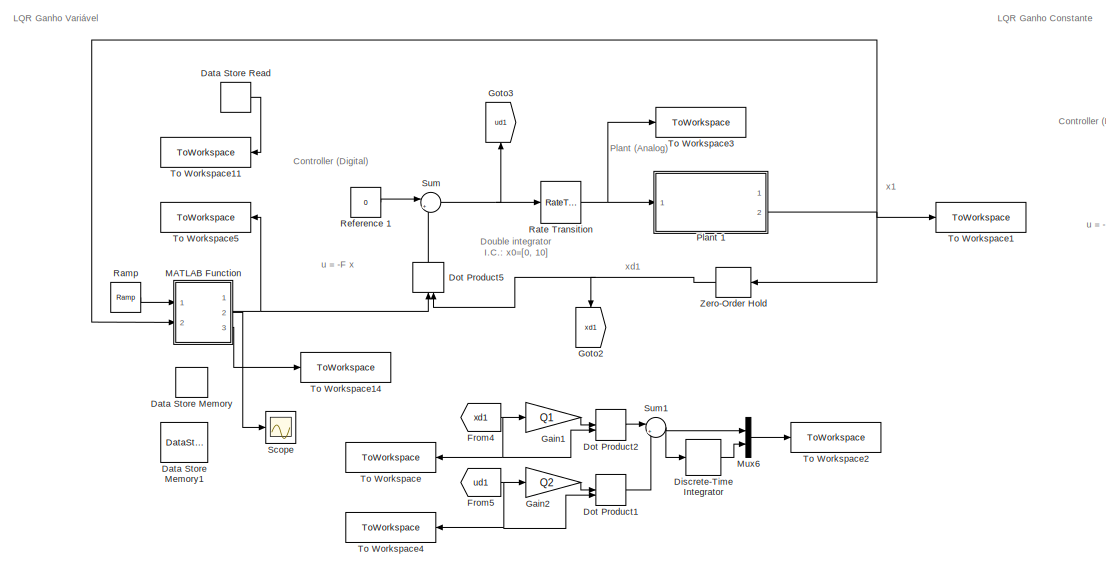
[diagram: root canvas - part 1/3, top left region]
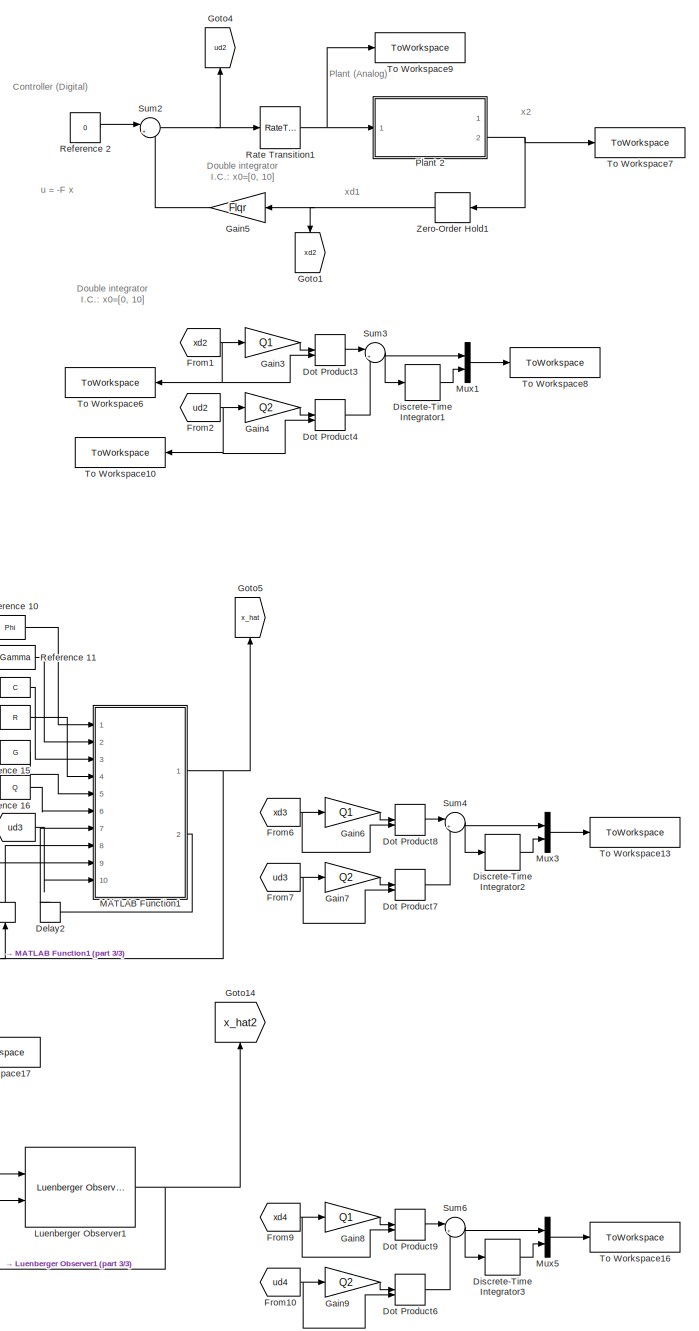
[diagram: root canvas - part 2/3, right side, full height]
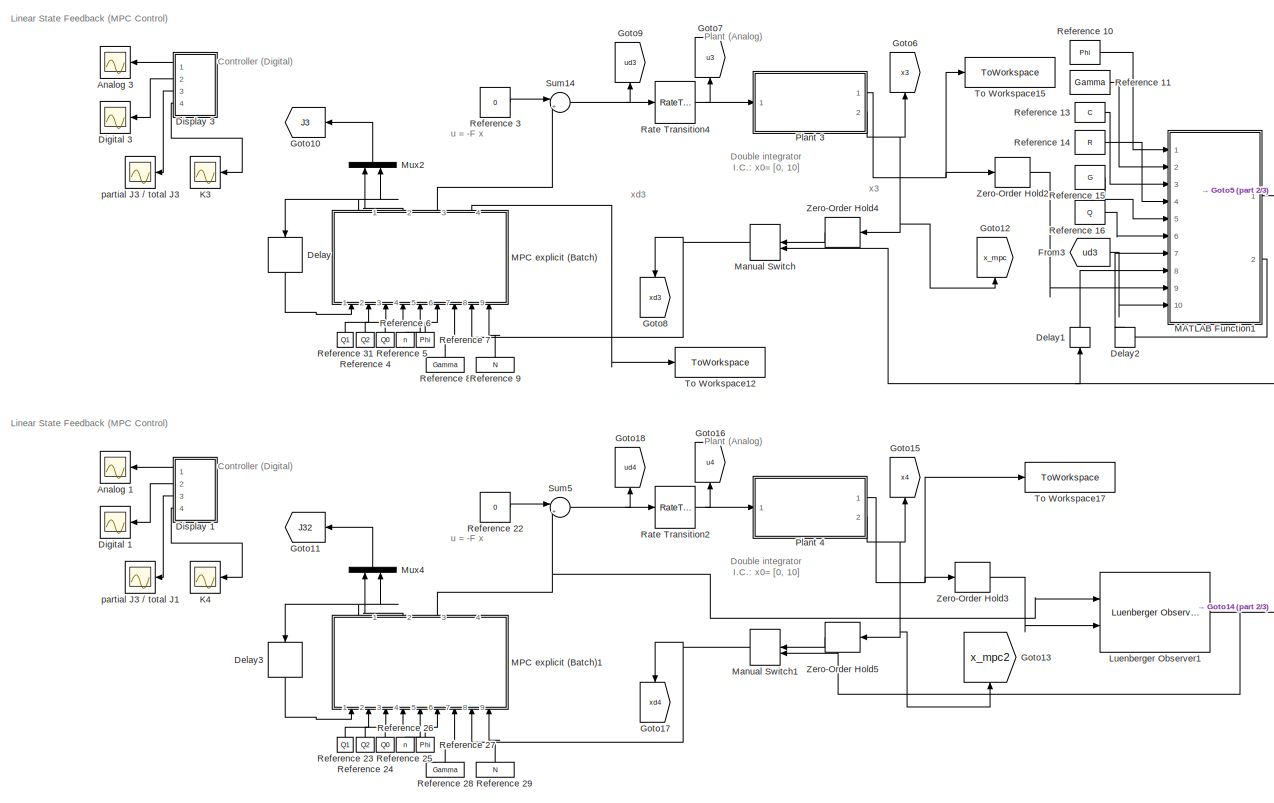
[diagram: root canvas - part 3/3, bottom center region]
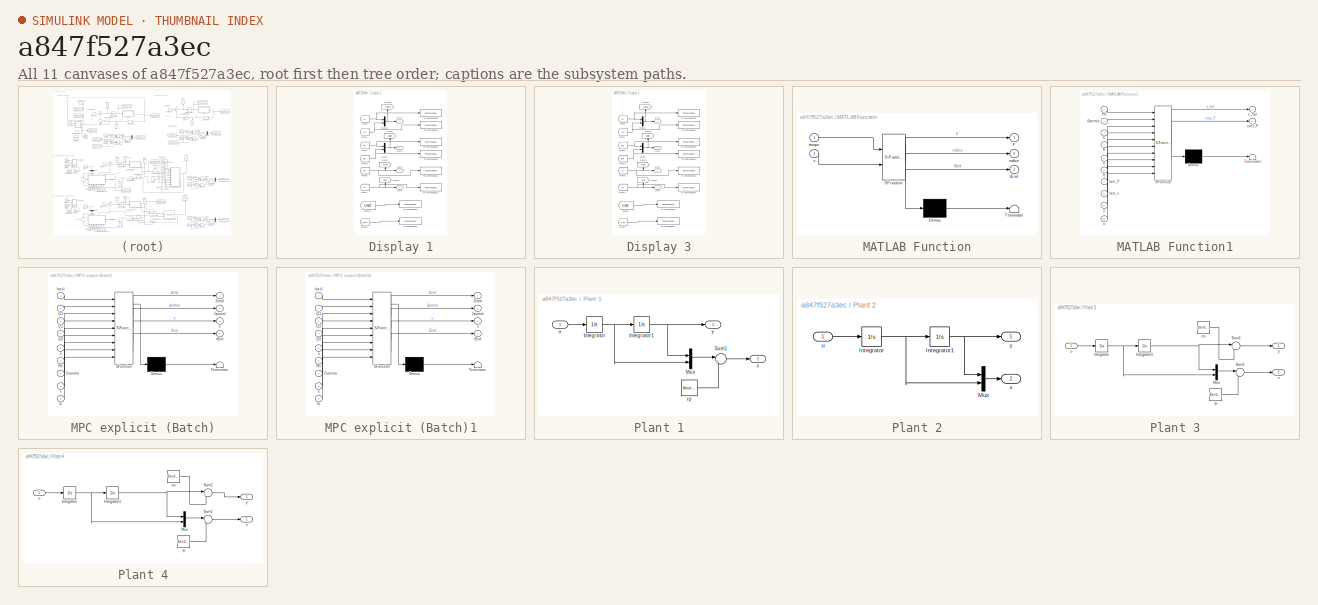
[diagram: thumbnail index - all 11 canvases of the model, root first then tree order]
MODEL slx_a847f527a3ec
KIND model
CONFIG AbsTol = auto
CONFIG EnableMultiTasking = off
CONFIG FixedStep = 1e-3
CONFIG MaxStep = auto
CONFIG MinStep = auto
CONFIG RelTol = 1e-3
CONFIG SampleTimeConstraint = Unconstrained
CONFIG SolverName = ode4
CONFIG StartTime = 0.0
CONFIG StopTime = 30
BLOCK [Scope] Analog 1
  Floating = off
  NumInputPorts = 1
  Ports = [1]
  ScopeSpecificationString = Simulink.scopes.TimeScopeBlockCfg('CurrentConfiguration', extmgr.ConfigurationSet(extmgr.Configuration('Core','General UI',true),extmgr.Configuration('Core','Source UI',true),extmgr.Configuration('Sources','WiredSimulink',true,'DataLogging',true,'DataLoggingVariableName','ScopeData1','DataLoggingSaveFormat','Array','DataLoggingDecimation','1','DataLoggingDecimateData',true),extmgr.Configuration('V...<+1737ch>
BLOCK [Scope] Analog 3
  Floating = off
  NumInputPorts = 1
  Ports = [1]
  ScopeSpecificationString = Simulink.scopes.TimeScopeBlockCfg('CurrentConfiguration', extmgr.ConfigurationSet(extmgr.Configuration('Core','General UI',true),extmgr.Configuration('Core','Source UI',true),extmgr.Configuration('Sources','WiredSimulink',true,'DataLogging',true,'DataLoggingVariableName','ScopeData7','DataLoggingSaveFormat','Array','DataLoggingDecimation','1','DataLoggingDecimateData',true),extmgr.Configuration('V...<+1737ch>
BLOCK [DataStoreMemory] Data Store Memory
  DataLogging = on
  DataStoreName = Fs
  InitialValue = F0
  OutDataTypeStr = double
  ReadBeforeWriteMsg = warning
  ShowAdditionalParam = off
  SignalType = real
  VectorParams1D = off
  WriteAfterReadMsg = warning
  WriteAfterWriteMsg = warning
BLOCK [DataStoreMemory] Data Store Memory1
  DataLogging = on
  DataStoreName = J_teorico
  OutDataTypeStr = double
  ReadBeforeWriteMsg = warning
  ShowAdditionalParam = off
  SignalType = real
  VectorParams1D = off
  WriteAfterReadMsg = warning
  WriteAfterWriteMsg = warning
BLOCK [DataStoreRead] Data Store Read
  DataStoreName = J_teorico
  Ports = [0, 1]
BLOCK [Delay] Delay
  DelayLength = 1
  InputPortMap = u0
  NameLocation = right
  Ports = [1, 1]
  SampleTime = h
BLOCK [Delay] Delay1
  DelayLength = 1
  InitialCondition = 0
  InputPortMap = u0
  NameLocation = left
  Ports = [1, 1]
  SampleTime = h
BLOCK [Delay] Delay2
  DelayLength = 1
  InitialCondition = [1 0;0 1]
  InputPortMap = u0
  NameLocation = left
  Ports = [1, 1]
  SampleTime = h
BLOCK [Delay] Delay3
  DelayLength = 1
  InputPortMap = u0
  NameLocation = right
  Ports = [1, 1]
  SampleTime = h
BLOCK [Scope] Digital 1
  Floating = off
  NumInputPorts = 1
  Ports = [1]
  ScopeSpecificationString = Simulink.scopes.TimeScopeBlockCfg('CurrentConfiguration', extmgr.ConfigurationSet(extmgr.Configuration('Core','General UI',true),extmgr.Configuration('Core','Source UI',true),extmgr.Configuration('Sources','WiredSimulink',true,'DataLogging',true,'DataLoggingVariableName','ScopeData2','DataLoggingSaveFormat','StructureWithTime','DataLoggingDecimation','1','DataLoggingDecimateData',true),extmgr.Conf...<+1707ch>
BLOCK [Scope] Digital 3
  Floating = off
  NumInputPorts = 1
  Ports = [1]
  ScopeSpecificationString = Simulink.scopes.TimeScopeBlockCfg('CurrentConfiguration', extmgr.ConfigurationSet(extmgr.Configuration('Core','General UI',true),extmgr.Configuration('Core','Source UI',true),extmgr.Configuration('Sources','WiredSimulink',true,'DataLogging',true,'DataLoggingVariableName','ScopeData24','DataLoggingSaveFormat','StructureWithTime','DataLoggingDecimation','1','DataLoggingDecimateData',true),extmgr.Con...<+1708ch>
BLOCK [DiscreteIntegrator] Discrete-Time Integrator
  ICPrevOutput = DiscIntNeverNeededParam
  ICPrevScaledInput = DiscIntNeverNeededParam
  InitialConditionSetting = Auto
  Ports = [1, 1]
  SampleTime = h
BLOCK [DiscreteIntegrator] Discrete-Time Integrator1
  ICPrevOutput = DiscIntNeverNeededParam
  ICPrevScaledInput = DiscIntNeverNeededParam
  InitialConditionSetting = Auto
  Ports = [1, 1]
  SampleTime = h
BLOCK [DiscreteIntegrator] Discrete-Time Integrator2
  ICPrevOutput = DiscIntNeverNeededParam
  ICPrevScaledInput = DiscIntNeverNeededParam
  InitialConditionSetting = Auto
  Ports = [1, 1]
  SampleTime = h
BLOCK [DiscreteIntegrator] Discrete-Time Integrator3
  ICPrevOutput = DiscIntNeverNeededParam
  ICPrevScaledInput = DiscIntNeverNeededParam
  InitialConditionSetting = Auto
  Ports = [1, 1]
  SampleTime = h
BLOCK [SubSystem] Display 1
  Ports = [0, 4]
  RequestExecContextInheritance = off
BLOCK [From] Display 1/From
  GotoTag = x4
  TagVisibility = global
BLOCK [From] Display 1/From1
  GotoTag = u4
  TagVisibility = global
BLOCK [From] Display 1/From2
  GotoTag = xd4
  TagVisibility = global
BLOCK [From] Display 1/From3
  GotoTag = ud4
  TagVisibility = global
BLOCK [From] Display 1/From4
  GotoTag = x_hat2
  TagVisibility = global
BLOCK [From] Display 1/From5
  GotoTag = x_mpc2
  TagVisibility = global
BLOCK [From] Display 1/From6
  GotoTag = J32
  TagVisibility = global
BLOCK [From] Display 1/From7
  GotoTag = K4
BLOCK [Goto] Display 1/Goto1
  GotoTag = Digital4
  NameLocation = left
  TagVisibility = global
BLOCK [Goto] Display 1/Goto12
  GotoTag = Analog4
  NameLocation = left
  TagVisibility = global
BLOCK [Goto] Display 1/Goto2
  GotoTag = Costs4
  NameLocation = left
  TagVisibility = global
BLOCK [Goto] Display 1/Goto3
  GotoTag = Gain4
  NameLocation = left
  TagVisibility = global
BLOCK [Mux] Display 1/Mux13
  DisplayOption = bar
  Inputs = 2
  Ports = [2, 1]
BLOCK [Mux] Display 1/Mux2
  DisplayOption = bar
  Inputs = 2
  Ports = [2, 1]
BLOCK [Outport] Display 1/Out1
BLOCK [Outport] Display 1/Out2
  Port = 2
BLOCK [Outport] Display 1/Out3
  Port = 3
BLOCK [Outport] Display 1/Out4
  Port = 4
BLOCK [ToWorkspace] Display 1/To Workspace1
  FixptAsFi = on
  MaxDataPoints = inf
  Ports = [1]
  SampleTime = h
  SaveFormat = Timeseries
  VariableName = u4
BLOCK [ToWorkspace] Display 1/To Workspace12
  FixptAsFi = on
  MaxDataPoints = inf
  Ports = [1]
  SampleTime = h
  SaveFormat = Timeseries
  VariableName = J32
BLOCK [ToWorkspace] Display 1/To Workspace13
  FixptAsFi = on
  MaxDataPoints = inf
  Ports = [1]
  SampleTime = h
  SaveFormat = Timeseries
  VariableName = xd4
BLOCK [ToWorkspace] Display 1/To Workspace14
  FixptAsFi = on
  MaxDataPoints = inf
  Ports = [1]
  SampleTime = h
  SaveFormat = Timeseries
  VariableName = K4
BLOCK [ToWorkspace] Display 1/To Workspace15
  FixptAsFi = on
  MaxDataPoints = inf
  Ports = [1]
  SampleTime = -1
  SaveFormat = Timeseries
  VariableName = x4
BLOCK [ToWorkspace] Display 1/To Workspace2
  FixptAsFi = on
  MaxDataPoints = inf
  Ports = [1]
  SampleTime = h
  SaveFormat = Timeseries
  VariableName = ud4
BLOCK [ToWorkspace] Display 1/To Workspace3
  FixptAsFi = on
  MaxDataPoints = inf
  Ports = [1]
  SampleTime = -1
  SaveFormat = Timeseries
  VariableName = x_mpc2
BLOCK [ToWorkspace] Display 1/To Workspace4
  FixptAsFi = on
  MaxDataPoints = inf
  Ports = [1]
  SampleTime = h
  SaveFormat = Timeseries
  VariableName = x_hat2
BLOCK [SubSystem] Display 3
  Ports = [0, 4]
  RequestExecContextInheritance = off
BLOCK [From] Display 3/From
  GotoTag = x3
  TagVisibility = global
BLOCK [From] Display 3/From1
  GotoTag = u3
  TagVisibility = global
BLOCK [From] Display 3/From2
  GotoTag = xd3
  TagVisibility = global
BLOCK [From] Display 3/From3
  GotoTag = ud3
  TagVisibility = global
BLOCK [From] Display 3/From4
  GotoTag = x_hat
  TagVisibility = global
BLOCK [From] Display 3/From5
  GotoTag = x_mpc
  TagVisibility = global
BLOCK [From] Display 3/From6
  GotoTag = J3
  TagVisibility = global
BLOCK [From] Display 3/From7
  GotoTag = K3
BLOCK [Goto] Display 3/Goto1
  GotoTag = Digital3
  NameLocation = left
  TagVisibility = global
BLOCK [Goto] Display 3/Goto12
  GotoTag = Analog3
  NameLocation = left
  TagVisibility = global
BLOCK [Goto] Display 3/Goto2
  GotoTag = Costs3
  NameLocation = left
  TagVisibility = global
BLOCK [Goto] Display 3/Goto3
  GotoTag = Gain3
  NameLocation = left
  TagVisibility = global
BLOCK [Mux] Display 3/Mux13
  DisplayOption = bar
  Inputs = 2
  Ports = [2, 1]
BLOCK [Mux] Display 3/Mux2
  DisplayOption = bar
  Inputs = 2
  Ports = [2, 1]
BLOCK [Outport] Display 3/Out1
BLOCK [Outport] Display 3/Out2
  Port = 2
BLOCK [Outport] Display 3/Out3
  Port = 3
BLOCK [Outport] Display 3/Out4
  Port = 4
BLOCK [ToWorkspace] Display 3/To Workspace1
  FixptAsFi = on
  MaxDataPoints = inf
  Ports = [1]
  SampleTime = h
  SaveFormat = Timeseries
  VariableName = u3
BLOCK [ToWorkspace] Display 3/To Workspace12
  FixptAsFi = on
  MaxDataPoints = inf
  Ports = [1]
  SampleTime = h
  SaveFormat = Timeseries
  VariableName = J3
BLOCK [ToWorkspace] Display 3/To Workspace13
  FixptAsFi = on
  MaxDataPoints = inf
  Ports = [1]
  SampleTime = h
  SaveFormat = Timeseries
  VariableName = xd3
BLOCK [ToWorkspace] Display 3/To Workspace14
  FixptAsFi = on
  MaxDataPoints = inf
  Ports = [1]
  SampleTime = h
  SaveFormat = Timeseries
  VariableName = K3
BLOCK [ToWorkspace] Display 3/To Workspace15
  FixptAsFi = on
  MaxDataPoints = inf
  Ports = [1]
  SampleTime = -1
  SaveFormat = Timeseries
  VariableName = x3
BLOCK [ToWorkspace] Display 3/To Workspace2
  FixptAsFi = on
  MaxDataPoints = inf
  Ports = [1]
  SampleTime = h
  SaveFormat = Timeseries
  VariableName = ud3
BLOCK [ToWorkspace] Display 3/To Workspace3
  FixptAsFi = on
  MaxDataPoints = inf
  Ports = [1]
  SampleTime = -1
  SaveFormat = Timeseries
  VariableName = x_mpc
BLOCK [ToWorkspace] Display 3/To Workspace4
  FixptAsFi = on
  MaxDataPoints = inf
  Ports = [1]
  SampleTime = h
  SaveFormat = Timeseries
  VariableName = x_hat
BLOCK [DotProduct] Dot Product1
  OutDataTypeStr = Inherit: Inherit via internal rule
BLOCK [DotProduct] Dot Product2
  OutDataTypeStr = Inherit: Inherit via internal rule
BLOCK [DotProduct] Dot Product3
  OutDataTypeStr = Inherit: Inherit via internal rule
BLOCK [DotProduct] Dot Product4
  OutDataTypeStr = Inherit: Inherit via internal rule
BLOCK [DotProduct] Dot Product5
  NameLocation = right
  OutDataTypeStr = Inherit: Inherit via internal rule
BLOCK [DotProduct] Dot Product6
  OutDataTypeStr = Inherit: Inherit via internal rule
BLOCK [DotProduct] Dot Product7
  OutDataTypeStr = Inherit: Inherit via internal rule
BLOCK [DotProduct] Dot Product8
  OutDataTypeStr = Inherit: Inherit via internal rule
BLOCK [DotProduct] Dot Product9
  OutDataTypeStr = Inherit: Inherit via internal rule
BLOCK [From] From1
  GotoTag = xd2
  TagVisibility = global
BLOCK [From] From10
  GotoTag = ud4
  TagVisibility = global
BLOCK [From] From2
  GotoTag = ud2
  TagVisibility = global
BLOCK [From] From3
  GotoTag = ud3
  TagVisibility = global
BLOCK [From] From4
  GotoTag = xd1
  TagVisibility = global
BLOCK [From] From5
  GotoTag = ud1
  TagVisibility = global
BLOCK [From] From6
  GotoTag = xd3
  TagVisibility = global
BLOCK [From] From7
  GotoTag = ud3
  TagVisibility = global
BLOCK [From] From9
  GotoTag = xd4
  TagVisibility = global
BLOCK [Gain] Gain1
  Gain = Q1
  Multiplication = Matrix(K*u)
BLOCK [Gain] Gain2
  Gain = Q2
  Multiplication = Matrix(K*u)
BLOCK [Gain] Gain3
  Gain = Q1
  Multiplication = Matrix(K*u)
BLOCK [Gain] Gain4
  Gain = Q2
  Multiplication = Matrix(K*u)
BLOCK [Gain] Gain5
  Gain = Flqr
  Multiplication = Matrix(K*u)
BLOCK [Gain] Gain6
  Gain = Q1
  Multiplication = Matrix(K*u)
BLOCK [Gain] Gain7
  Gain = Q2
  Multiplication = Matrix(K*u)
BLOCK [Gain] Gain8
  Gain = Q1
  Multiplication = Matrix(K*u)
BLOCK [Gain] Gain9
  Gain = Q2
  Multiplication = Matrix(K*u)
BLOCK [Goto] Goto1
  GotoTag = xd2
  NameLocation = left
  TagVisibility = global
BLOCK [Goto] Goto10
  GotoTag = J3
  NameLocation = top
  TagVisibility = global
BLOCK [Goto] Goto11
  GotoTag = J32
  NameLocation = top
  TagVisibility = global
BLOCK [Goto] Goto12
  GotoTag = x_mpc
  NameLocation = left
  TagVisibility = global
BLOCK [Goto] Goto13
  GotoTag = x_mpc2
  NameLocation = left
  TagVisibility = global
BLOCK [Goto] Goto14
  GotoTag = x_hat2
  NameLocation = left
  TagVisibility = global
BLOCK [Goto] Goto15
  GotoTag = x4
  NameLocation = left
  TagVisibility = global
BLOCK [Goto] Goto16
  GotoTag = u4
  NameLocation = left
  TagVisibility = global
BLOCK [Goto] Goto17
  GotoTag = xd4
  NameLocation = left
  TagVisibility = global
BLOCK [Goto] Goto18
  GotoTag = ud4
  NameLocation = left
  TagVisibility = global
BLOCK [Goto] Goto2
  GotoTag = xd1
  NameLocation = left
  TagVisibility = global
BLOCK [Goto] Goto3
  GotoTag = ud1
  NameLocation = left
  TagVisibility = global
BLOCK [Goto] Goto4
  GotoTag = ud2
  NameLocation = left
  TagVisibility = global
BLOCK [Goto] Goto5
  GotoTag = x_hat
  NameLocation = left
  TagVisibility = global
BLOCK [Goto] Goto6
  GotoTag = x3
  NameLocation = left
  TagVisibility = global
BLOCK [Goto] Goto7
  GotoTag = u3
  NameLocation = left
  TagVisibility = global
BLOCK [Goto] Goto8
  GotoTag = xd3
  NameLocation = left
  TagVisibility = global
BLOCK [Goto] Goto9
  GotoTag = ud3
  NameLocation = left
  TagVisibility = global
BLOCK [Scope] K3
  Floating = off
  NumInputPorts = 1
  Ports = [1]
  ScopeSpecificationString = Simulink.scopes.TimeScopeBlockCfg('CurrentConfiguration', extmgr.ConfigurationSet(extmgr.Configuration('Core','General UI',true),extmgr.Configuration('Core','Source UI',true),extmgr.Configuration('Sources','WiredSimulink',true,'DataLogging',true,'DataLoggingVariableName','ScopeData25','DataLoggingSaveFormat','Array','DataLoggingDecimation','1','DataLoggingDecimateData',true),extmgr.Configuration('...<+1718ch>
BLOCK [Scope] K4
  Floating = off
  NumInputPorts = 1
  Ports = [1]
  ScopeSpecificationString = Simulink.scopes.TimeScopeBlockCfg('CurrentConfiguration', extmgr.ConfigurationSet(extmgr.Configuration('Core','General UI',true),extmgr.Configuration('Core','Source UI',true),extmgr.Configuration('Sources','WiredSimulink',true,'DataLogging',true,'DataLoggingVariableName','ScopeData3','DataLoggingSaveFormat','Array','DataLoggingDecimation','1','DataLoggingDecimateData',true),extmgr.Configuration('V...<+1717ch>
BLOCK [Reference] Luenberger Observer1  REF=eeLuenbergerObserver/Luenberger Observer
  Ports = [2, 1]
  SourceBlock = eeLuenbergerObserver/Luenberger Observer
  SourceProductBaseCode = PS
  SourceType = Luenberger Observer
BLOCK [SubSystem] MATLAB Function
  ErrorFcn = Stateflow.Translate.translate
  PermitHierarchicalResolution = ExplicitOnly
  Ports = [2, 3]
  RequestExecContextInheritance = off
  SFBlockType = MATLAB Function
  SystemSampleTime = h
  TreatAsAtomicUnit = on
BLOCK [Demux] MATLAB Function/ Demux 
  Outputs = 1
  Ports = [1, 1]
BLOCK [S-Function] MATLAB Function/ SFunction 
  EnableBusSupport = on
  FunctionName = sf_sfun
  Parameters = Gamma,N,Phi,Q0,Q1,Q2,h,n
  PortCounts = [2 4]
  Ports = [2, 4]
  SFcnIsStateOwnerBlock = off
  SFunctionDeploymentMode = off
  Tag = Stateflow S-Function 1
BLOCK [Terminator] MATLAB Function/ Terminator 
BLOCK [Outport] MATLAB Function/F
BLOCK [Outport] MATLAB Function/indice
  Port = 2
BLOCK [Outport] MATLAB Function/tEnd
  Port = 3
BLOCK [Inport] MATLAB Function/tempo
BLOCK [Inport] MATLAB Function/x
  Port = 2
BLOCK [SubSystem] MATLAB Function1
  ErrorFcn = Stateflow.Translate.translate
  PermitHierarchicalResolution = ExplicitOnly
  Ports = [10, 2]
  RequestExecContextInheritance = off
  SFBlockType = MATLAB Function
  TreatAsAtomicUnit = on
BLOCK [Demux] MATLAB Function1/ Demux 
  Outputs = 1
  Ports = [1, 1]
BLOCK [S-Function] MATLAB Function1/ SFunction 
  EnableBusSupport = on
  FunctionName = sf_sfun
  PortCounts = [10 3]
  Ports = [10, 3]
  SFcnIsStateOwnerBlock = off
  SFunctionDeploymentMode = off
  Tag = Stateflow S-Function 3
BLOCK [Terminator] MATLAB Function1/ Terminator 
BLOCK [Inport] MATLAB Function1/C
  Port = 3
BLOCK [Inport] MATLAB Function1/G
  Port = 5
BLOCK [Inport] MATLAB Function1/Gamma
  Port = 2
BLOCK [Inport] MATLAB Function1/Phi
BLOCK [Inport] MATLAB Function1/Q
  Port = 6
BLOCK [Inport] MATLAB Function1/R
  Port = 4
BLOCK [Inport] MATLAB Function1/last_P
  Port = 7
BLOCK [Inport] MATLAB Function1/last_x
  Port = 8
BLOCK [Outport] MATLAB Function1/next_P
  Port = 2
BLOCK [Inport] MATLAB Function1/u
  Port = 10
BLOCK [Outport] MATLAB Function1/x_hat
BLOCK [Inport] MATLAB Function1/y
  Port = 9
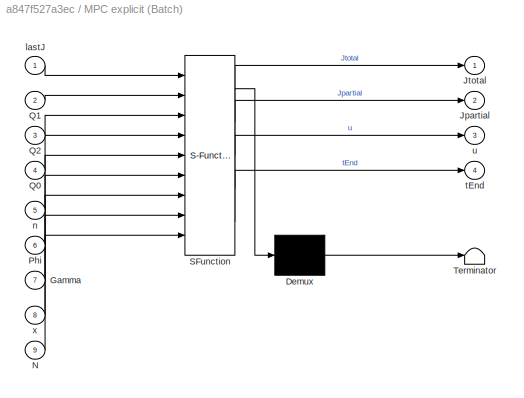
BLOCK [SubSystem] MPC explicit (Batch)
  ErrorFcn = Stateflow.Translate.translate
  NameLocation = right
  PermitHierarchicalResolution = ExplicitOnly
  Ports = [9, 4]
  RequestExecContextInheritance = off
  SFBlockType = MATLAB Function
  TreatAsAtomicUnit = on
BLOCK [Demux] MPC explicit (Batch)/ Demux 
  Outputs = 1
  Ports = [1, 1]
BLOCK [S-Function] MPC explicit (Batch)/ SFunction 
  EnableBusSupport = on
  FunctionName = sf_sfun
  Parameters = C,UM,Um,YM,Ym
  PortCounts = [9 5]
  Ports = [9, 5]
  SFcnIsStateOwnerBlock = off
  SFunctionDeploymentMode = off
  Tag = Stateflow S-Function 2
BLOCK [Terminator] MPC explicit (Batch)/ Terminator 
BLOCK [Inport] MPC explicit (Batch)/Gamma
  Port = 7
BLOCK [Outport] MPC explicit (Batch)/Jpartial
  Port = 2
BLOCK [Outport] MPC explicit (Batch)/Jtotal
BLOCK [Inport] MPC explicit (Batch)/N
  Port = 9
BLOCK [Inport] MPC explicit (Batch)/Phi
  Port = 6
BLOCK [Inport] MPC explicit (Batch)/Q0
  Port = 4
BLOCK [Inport] MPC explicit (Batch)/Q1
  Port = 2
BLOCK [Inport] MPC explicit (Batch)/Q2
  Port = 3
BLOCK [Inport] MPC explicit (Batch)/lastJ
BLOCK [Inport] MPC explicit (Batch)/n
  Port = 5
BLOCK [Outport] MPC explicit (Batch)/tEnd
  Port = 4
BLOCK [Outport] MPC explicit (Batch)/u
  Port = 3
BLOCK [Inport] MPC explicit (Batch)/x
  Port = 8
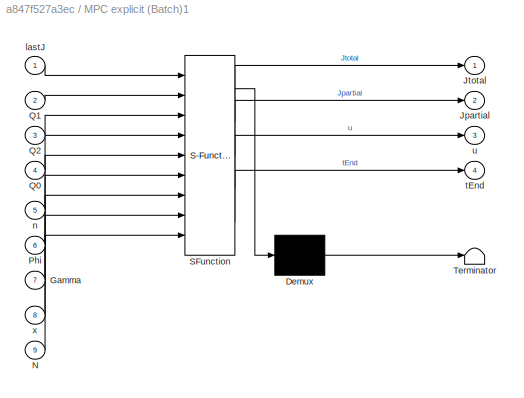
BLOCK [SubSystem] MPC explicit (Batch)1
  ErrorFcn = Stateflow.Translate.translate
  NameLocation = right
  PermitHierarchicalResolution = ExplicitOnly
  Ports = [9, 4]
  RequestExecContextInheritance = off
  SFBlockType = MATLAB Function
  TreatAsAtomicUnit = on
BLOCK [Demux] MPC explicit (Batch)1/ Demux 
  Outputs = 1
  Ports = [1, 1]
BLOCK [S-Function] MPC explicit (Batch)1/ SFunction 
  EnableBusSupport = on
  FunctionName = sf_sfun
  Parameters = C,UM,Um,YM,Ym
  PortCounts = [9 5]
  Ports = [9, 5]
  SFcnIsStateOwnerBlock = off
  SFunctionDeploymentMode = off
  Tag = Stateflow S-Function 5
BLOCK [Terminator] MPC explicit (Batch)1/ Terminator 
BLOCK [Inport] MPC explicit (Batch)1/Gamma
  Port = 7
BLOCK [Outport] MPC explicit (Batch)1/Jpartial
  Port = 2
BLOCK [Outport] MPC explicit (Batch)1/Jtotal
BLOCK [Inport] MPC explicit (Batch)1/N
  Port = 9
BLOCK [Inport] MPC explicit (Batch)1/Phi
  Port = 6
BLOCK [Inport] MPC explicit (Batch)1/Q0
  Port = 4
BLOCK [Inport] MPC explicit (Batch)1/Q1
  Port = 2
BLOCK [Inport] MPC explicit (Batch)1/Q2
  Port = 3
BLOCK [Inport] MPC explicit (Batch)1/lastJ
BLOCK [Inport] MPC explicit (Batch)1/n
  Port = 5
BLOCK [Outport] MPC explicit (Batch)1/tEnd
  Port = 4
BLOCK [Outport] MPC explicit (Batch)1/u
  Port = 3
BLOCK [Inport] MPC explicit (Batch)1/x
  Port = 8
BLOCK [ManualSwitch] Manual Switch
  CurrentSetting = 0
  NameLocation = top
BLOCK [ManualSwitch] Manual Switch1
  CurrentSetting = 0
  NameLocation = top
BLOCK [Mux] Mux1
  DisplayOption = bar
  Inputs = 2
  Ports = [2, 1]
BLOCK [Mux] Mux2
  DisplayOption = bar
  Inputs = 2
  NameLocation = right
  Ports = [2, 1]
BLOCK [Mux] Mux3
  DisplayOption = bar
  Inputs = 2
  Ports = [2, 1]
BLOCK [Mux] Mux4
  DisplayOption = bar
  Inputs = 2
  NameLocation = right
  Ports = [2, 1]
BLOCK [Mux] Mux5
  DisplayOption = bar
  Inputs = 2
  Ports = [2, 1]
BLOCK [Mux] Mux6
  DisplayOption = bar
  Inputs = 2
  Ports = [2, 1]
BLOCK [SubSystem] Plant 1
  Ports = [1, 2]
  RequestExecContextInheritance = off
BLOCK [Integrator] Plant 1/Integrator
  InitialCondition = x10
  Ports = [1, 1]
BLOCK [Integrator] Plant 1/Integrator1
  InitialCondition = x20
  Ports = [1, 1]
BLOCK [Mux] Plant 1/Mux
  DisplayOption = bar
  Inputs = 2
  Ports = [2, 1]
BLOCK [Sum] Plant 1/Sum1
  Inputs = |++
  Ports = [2, 1]
BLOCK [Reference] Plant 1/rp  REF=simulink/Sources/Band-Limited
White Noise
  Ports = [0, 1]
  SourceBlock = simulink/Sources/Band-Limited\nWhite Noise
  SourceProductBaseCode = SL
  SourceType = Band-Limited White Noise.
BLOCK [Inport] Plant 1/u
BLOCK [Outport] Plant 1/x
  Port = 2
BLOCK [Outport] Plant 1/y
BLOCK [SubSystem] Plant 2
  Ports = [1, 2]
  RequestExecContextInheritance = off
BLOCK [Integrator] Plant 2/Integrator
  InitialCondition = x10
  Ports = [1, 1]
BLOCK [Integrator] Plant 2/Integrator1
  InitialCondition = x20
  Ports = [1, 1]
BLOCK [Mux] Plant 2/Mux
  DisplayOption = bar
  Inputs = 2
  Ports = [2, 1]
BLOCK [Inport] Plant 2/u
BLOCK [Outport] Plant 2/x
  Port = 2
BLOCK [Outport] Plant 2/y
BLOCK [SubSystem] Plant 3
  Ports = [1, 2]
  RequestExecContextInheritance = off
BLOCK [Integrator] Plant 3/Integrator
  InitialCondition = x10
  Ports = [1, 1]
BLOCK [Integrator] Plant 3/Integrator1
  InitialCondition = x20
  Ports = [1, 1]
BLOCK [Mux] Plant 3/Mux
  DisplayOption = bar
  Inputs = 2
  Ports = [2, 1]
BLOCK [Sum] Plant 3/Sum1
  Inputs = |++
  Ports = [2, 1]
BLOCK [Sum] Plant 3/Sum2
  Inputs = |++
  Ports = [2, 1]
BLOCK [Reference] Plant 3/rm  REF=simulink/Sources/Band-Limited
White Noise
  Ports = [0, 1]
  SourceBlock = simulink/Sources/Band-Limited\nWhite Noise
  SourceProductBaseCode = SL
  SourceType = Band-Limited White Noise.
BLOCK [Reference] Plant 3/rp  REF=simulink/Sources/Band-Limited
White Noise
  Ports = [0, 1]
  SourceBlock = simulink/Sources/Band-Limited\nWhite Noise
  SourceProductBaseCode = SL
  SourceType = Band-Limited White Noise.
BLOCK [Inport] Plant 3/u
BLOCK [Outport] Plant 3/x
  Port = 2
BLOCK [Outport] Plant 3/y
BLOCK [SubSystem] Plant 4
  Ports = [1, 2]
  RequestExecContextInheritance = off
BLOCK [Integrator] Plant 4/Integrator
  InitialCondition = x10
  Ports = [1, 1]
BLOCK [Integrator] Plant 4/Integrator1
  InitialCondition = x20
  Ports = [1, 1]
BLOCK [Mux] Plant 4/Mux
  DisplayOption = bar
  Inputs = 2
  Ports = [2, 1]
BLOCK [Sum] Plant 4/Sum1
  Inputs = |++
  Ports = [2, 1]
BLOCK [Sum] Plant 4/Sum2
  Inputs = |++
  Ports = [2, 1]
BLOCK [Reference] Plant 4/rm  REF=simulink/Sources/Band-Limited
White Noise
  Ports = [0, 1]
  SourceBlock = simulink/Sources/Band-Limited\nWhite Noise
  SourceProductBaseCode = SL
  SourceType = Band-Limited White Noise.
BLOCK [Reference] Plant 4/rp  REF=simulink/Sources/Band-Limited
White Noise
  Ports = [0, 1]
  SourceBlock = simulink/Sources/Band-Limited\nWhite Noise
  SourceProductBaseCode = SL
  SourceType = Band-Limited White Noise.
BLOCK [Inport] Plant 4/u
BLOCK [Outport] Plant 4/x
  Port = 2
BLOCK [Outport] Plant 4/y
BLOCK [Reference] Ramp  REF=simulink/Sources/Ramp
  Ports = [0, 1]
  SourceBlock = simulink/Sources/Ramp
  SourceProductBaseCode = SL
  SourceType = Ramp
BLOCK [RateTransition] Rate Transition
  Integrity = off
  OutPortSampleTime = h
BLOCK [RateTransition] Rate Transition1
  Integrity = off
  OutPortSampleTime = h
BLOCK [RateTransition] Rate Transition2
  Integrity = off
BLOCK [RateTransition] Rate Transition4
  Integrity = off
BLOCK [Constant] Reference 1
  SampleTime = h
  Value = 0
BLOCK [Constant] Reference 10
  SampleTime = h
  Value = Phi
  VectorParams1D = off
BLOCK [Constant] Reference 11
  SampleTime = h
  Value = Gamma
  VectorParams1D = off
BLOCK [Constant] Reference 13
  SampleTime = h
  Value = C
  VectorParams1D = off
BLOCK [Constant] Reference 14
  SampleTime = h
  Value = R
  VectorParams1D = off
BLOCK [Constant] Reference 15
  SampleTime = h
  Value = G
  VectorParams1D = off
BLOCK [Constant] Reference 16
  SampleTime = h
  Value = Q
  VectorParams1D = off
BLOCK [Constant] Reference 2
  SampleTime = h
  Value = 0
BLOCK [Constant] Reference 22
  SampleTime = h
  Value = 0
BLOCK [Constant] Reference 23
  NameLocation = left
  SampleTime = h
  Value = Q1
BLOCK [Constant] Reference 24
  NameLocation = left
  SampleTime = h
  Value = Q2
BLOCK [Constant] Reference 25
  NameLocation = left
  SampleTime = h
  Value = Q0
BLOCK [Constant] Reference 26
  NameLocation = left
  SampleTime = h
  Value = n
BLOCK [Constant] Reference 27
  NameLocation = left
  SampleTime = h
  Value = Phi
BLOCK [Constant] Reference 28
  NameLocation = right
  SampleTime = h
  Value = Gamma
BLOCK [Constant] Reference 29
  NameLocation = right
  SampleTime = h
  Value = N
BLOCK [Constant] Reference 3
  SampleTime = h
  Value = 0
BLOCK [Constant] Reference 31
  NameLocation = left
  SampleTime = h
  Value = Q1
BLOCK [Constant] Reference 4
  NameLocation = left
  SampleTime = h
  Value = Q2
BLOCK [Constant] Reference 5
  NameLocation = left
  SampleTime = h
  Value = Q0
BLOCK [Constant] Reference 6
  NameLocation = left
  SampleTime = h
  Value = n
BLOCK [Constant] Reference 7
  NameLocation = left
  SampleTime = h
  Value = Phi
BLOCK [Constant] Reference 8
  NameLocation = right
  SampleTime = h
  Value = Gamma
BLOCK [Constant] Reference 9
  NameLocation = right
  SampleTime = h
  Value = N
BLOCK [Scope] Scope
  Floating = off
  NumInputPorts = 1
  Ports = [1]
  ScopeSpecificationString = Simulink.scopes.TimeScopeBlockCfg('CurrentConfiguration', extmgr.ConfigurationSet(extmgr.Configuration('Core','General UI',true),extmgr.Configuration('Core','Source UI',true),extmgr.Configuration('Sources','WiredSimulink',true),extmgr.Configuration('Visuals','Time Domain',true,'SerializedDisplays',{struct('MinYLimReal','4.81323','MaxYLimReal','10.46022','YLabelReal','','MinYLimMag','4.81323','MaxY...<+1415ch>
BLOCK [Sum] Sum
  Inputs = |+-
  Ports = [2, 1]
BLOCK [Sum] Sum1
  Inputs = |++
  Ports = [2, 1]
BLOCK [Sum] Sum14
  Inputs = |++
  Ports = [2, 1]
BLOCK [Sum] Sum2
  Inputs = |+-
  Ports = [2, 1]
BLOCK [Sum] Sum3
  Inputs = |++
  Ports = [2, 1]
BLOCK [Sum] Sum4
  Inputs = |++
  Ports = [2, 1]
BLOCK [Sum] Sum5
  Inputs = |++
  Ports = [2, 1]
BLOCK [Sum] Sum6
  Inputs = |++
  Ports = [2, 1]
BLOCK [ToWorkspace] To Workspace
  FixptAsFi = on
  MaxDataPoints = inf
  NameLocation = top
  Ports = [1]
  SampleTime = h
  SaveFormat = Timeseries
  VariableName = xd1
BLOCK [ToWorkspace] To Workspace1
  FixptAsFi = on
  MaxDataPoints = inf
  Ports = [1]
  SampleTime = -1
  SaveFormat = Timeseries
  VariableName = x1
BLOCK [ToWorkspace] To Workspace10
  FixptAsFi = on
  MaxDataPoints = inf
  NameLocation = top
  Ports = [1]
  SampleTime = h
  SaveFormat = Timeseries
  VariableName = ud2
BLOCK [ToWorkspace] To Workspace11
  FixptAsFi = on
  MaxDataPoints = inf
  NameLocation = top
  Ports = [1]
  SampleTime = -1
  SaveFormat = Timeseries
  VariableName = J_teorico
BLOCK [ToWorkspace] To Workspace12
  FixptAsFi = on
  MaxDataPoints = inf
  Ports = [1]
  SampleTime = h
  SaveFormat = Timeseries
  VariableName = tempo_mpc
BLOCK [ToWorkspace] To Workspace13
  FixptAsFi = on
  MaxDataPoints = inf
  Ports = [1]
  SampleTime = h
  SaveFormat = Timeseries
  VariableName = J4
BLOCK [ToWorkspace] To Workspace14
  FixptAsFi = on
  MaxDataPoints = inf
  Ports = [1]
  SampleTime = h
  SaveFormat = Timeseries
  VariableName = tempo_lqr
BLOCK [ToWorkspace] To Workspace15
  FixptAsFi = on
  MaxDataPoints = inf
  Ports = [1]
  SampleTime = -1
  SaveFormat = Timeseries
  VariableName = y1
BLOCK [ToWorkspace] To Workspace16
  FixptAsFi = on
  MaxDataPoints = inf
  Ports = [1]
  SampleTime = h
  SaveFormat = Timeseries
  VariableName = J42
BLOCK [ToWorkspace] To Workspace17
  FixptAsFi = on
  MaxDataPoints = inf
  Ports = [1]
  SampleTime = -1
  SaveFormat = Timeseries
  VariableName = y2
BLOCK [ToWorkspace] To Workspace2
  FixptAsFi = on
  MaxDataPoints = inf
  Ports = [1]
  SampleTime = h
  SaveFormat = Timeseries
  VariableName = J1
BLOCK [ToWorkspace] To Workspace3
  FixptAsFi = on
  MaxDataPoints = inf
  Ports = [1]
  SampleTime = -1
  SaveFormat = Timeseries
  VariableName = u1
BLOCK [ToWorkspace] To Workspace4
  FixptAsFi = on
  MaxDataPoints = inf
  NameLocation = top
  Ports = [1]
  SampleTime = h
  SaveFormat = Timeseries
  VariableName = ud1
BLOCK [ToWorkspace] To Workspace5
  FixptAsFi = on
  MaxDataPoints = inf
  NameLocation = top
  Ports = [1]
  SampleTime = -1
  SaveFormat = Timeseries
  VariableName = ganhos
BLOCK [ToWorkspace] To Workspace6
  FixptAsFi = on
  MaxDataPoints = inf
  NameLocation = top
  Ports = [1]
  SampleTime = h
  SaveFormat = Timeseries
  VariableName = xd2
BLOCK [ToWorkspace] To Workspace7
  FixptAsFi = on
  MaxDataPoints = inf
  Ports = [1]
  SampleTime = -1
  SaveFormat = Timeseries
  VariableName = x2
BLOCK [ToWorkspace] To Workspace8
  FixptAsFi = on
  MaxDataPoints = inf
  Ports = [1]
  SampleTime = h
  SaveFormat = Timeseries
  VariableName = J2
BLOCK [ToWorkspace] To Workspace9
  FixptAsFi = on
  MaxDataPoints = inf
  Ports = [1]
  SampleTime = -1
  SaveFormat = Timeseries
  VariableName = u2
BLOCK [ZeroOrderHold] Zero-Order Hold
  SampleTime = h
BLOCK [ZeroOrderHold] Zero-Order Hold1
  SampleTime = h
BLOCK [ZeroOrderHold] Zero-Order Hold2
  NameLocation = top
  SampleTime = h
BLOCK [ZeroOrderHold] Zero-Order Hold3
  NameLocation = top
  SampleTime = h
BLOCK [ZeroOrderHold] Zero-Order Hold4
  SampleTime = h
BLOCK [ZeroOrderHold] Zero-Order Hold5
  SampleTime = h
BLOCK [Scope] partial J3 // total J1
  Floating = off
  NumInputPorts = 1
  Ports = [1]
  ScopeSpecificationString = Simulink.scopes.TimeScopeBlockCfg('CurrentConfiguration', extmgr.ConfigurationSet(extmgr.Configuration('Core','General UI',true),extmgr.Configuration('Core','Source UI',true),extmgr.Configuration('Sources','WiredSimulink',true,'DataLogging',true,'DataLoggingVariableName','ScopeData4','DataLoggingSaveFormat','Array','DataLoggingDecimation','1','DataLoggingDecimateData',true),extmgr.Configuration('V...<+1752ch>
BLOCK [Scope] partial J3 // total J3
  Floating = off
  NumInputPorts = 1
  Ports = [1]
  ScopeSpecificationString = Simulink.scopes.TimeScopeBlockCfg('CurrentConfiguration', extmgr.ConfigurationSet(extmgr.Configuration('Core','General UI',true),extmgr.Configuration('Core','Source UI',true),extmgr.Configuration('Sources','WiredSimulink',true,'DataLogging',true,'DataLoggingVariableName','ScopeData26','DataLoggingSaveFormat','Array','DataLoggingDecimation','1','DataLoggingDecimateData',true),extmgr.Configuration('...<+1753ch>
ANNOTATION (root): u = -F x
ANNOTATION (root): x2
ANNOTATION (root): x3
ANNOTATION (root): xd3
ANNOTATION (root): x1
ANNOTATION (root): xd1
ANNOTATION (root): Controller (Digital)
ANNOTATION (root): Double integrator I.C.: x0= [0, 10]
ANNOTATION (root): Double integrator I.C.: x0=[0, 10]
ANNOTATION (root): LQR Ganho Constante
ANNOTATION (root): LQR Ganho Variável
ANNOTATION (root): Linear State Feedback (MPC Control)
ANNOTATION (root): Plant (Analog)
LINE Data Store Read:1 -> To Workspace11:1
LINE Delay1:1 -> MATLAB Function1:8
LINE Delay2:1 -> MATLAB Function1:7
LINE Delay3:1 -> MPC explicit (Batch)1:1
LINE Delay:1 -> MPC explicit (Batch):1
LINE Discrete-Time Integrator1:1 -> Mux1:2
LINE Discrete-Time Integrator2:1 -> Mux3:2
LINE Discrete-Time Integrator3:1 -> Mux5:2
LINE Discrete-Time Integrator:1 -> Mux6:2
NET Display 1/From1:1 -> Display 1/Mux13:2, Display 1/To Workspace1:1
NET Display 1/From2:1 -> Display 1/Mux2:1, Display 1/To Workspace13:1
NET Display 1/From3:1 -> Display 1/Mux2:2, Display 1/To Workspace2:1
LINE Display 1/From4:1 -> Display 1/To Workspace4:1
LINE Display 1/From5:1 -> Display 1/To Workspace3:1
NET Display 1/From6:1 -> Display 1/Goto2:1, Display 1/Out3:1, Display 1/To Workspace12:1
NET Display 1/From7:1 -> Display 1/Goto3:1, Display 1/Out4:1, Display 1/To Workspace14:1
NET Display 1/From:1 -> Display 1/Mux13:1, Display 1/To Workspace15:1
NET Display 1/Mux13:1 -> Display 1/Goto12:1, Display 1/Out1:1
NET Display 1/Mux2:1 -> Display 1/Goto1:1, Display 1/Out2:1
LINE Display 1:1 -> Analog 1:1
LINE Display 1:2 -> Digital 1:1
LINE Display 1:3 -> partial J3 // total J1:1
LINE Display 1:4 -> K4:1
NET Display 3/From1:1 -> Display 3/Mux13:2, Display 3/To Workspace1:1
NET Display 3/From2:1 -> Display 3/Mux2:1, Display 3/To Workspace13:1
NET Display 3/From3:1 -> Display 3/Mux2:2, Display 3/To Workspace2:1
LINE Display 3/From4:1 -> Display 3/To Workspace4:1
LINE Display 3/From5:1 -> Display 3/To Workspace3:1
NET Display 3/From6:1 -> Display 3/Goto2:1, Display 3/Out3:1, Display 3/To Workspace12:1
NET Display 3/From7:1 -> Display 3/Goto3:1, Display 3/Out4:1, Display 3/To Workspace14:1
NET Display 3/From:1 -> Display 3/Mux13:1, Display 3/To Workspace15:1
NET Display 3/Mux13:1 -> Display 3/Goto12:1, Display 3/Out1:1
NET Display 3/Mux2:1 -> Display 3/Goto1:1, Display 3/Out2:1
LINE Display 3:1 -> Analog 3:1
LINE Display 3:2 -> Digital 3:1
LINE Display 3:3 -> partial J3 // total J3:1
LINE Display 3:4 -> K3:1
LINE Dot Product1:1 -> Sum1:2
LINE Dot Product2:1 -> Sum1:1
LINE Dot Product3:1 -> Sum3:1
LINE Dot Product4:1 -> Sum3:2
LINE Dot Product5:1 -> Sum:2
LINE Dot Product6:1 -> Sum6:2
LINE Dot Product7:1 -> Sum4:2
LINE Dot Product8:1 -> Sum4:1
LINE Dot Product9:1 -> Sum6:1
NET From10:1 -> Dot Product6:2, Gain9:1
NET From1:1 -> Dot Product3:2, Gain3:1, To Workspace6:1
NET From2:1 -> Dot Product4:2, Gain4:1, To Workspace10:1
LINE From3:1 -> MATLAB Function1:10
NET From4:1 -> Dot Product2:2, Gain1:1, To Workspace:1
NET From5:1 -> Dot Product1:2, Gain2:1, To Workspace4:1
NET From6:1 -> Dot Product8:2, Gain6:1
NET From7:1 -> Dot Product7:2, Gain7:1
NET From9:1 -> Dot Product9:2, Gain8:1
LINE Gain1:1 -> Dot Product2:1
LINE Gain2:1 -> Dot Product1:1
LINE Gain3:1 -> Dot Product3:1
LINE Gain4:1 -> Dot Product4:1
LINE Gain5:1 -> Sum2:2
LINE Gain6:1 -> Dot Product8:1
LINE Gain7:1 -> Dot Product7:1
LINE Gain8:1 -> Dot Product9:1
LINE Gain9:1 -> Dot Product6:1
NET Luenberger Observer1:1 -> Goto14:1, Manual Switch1:2
NET MATLAB Function1:1 -> Delay1:1, Goto5:1, Manual Switch:2
LINE MATLAB Function1:2 -> Delay2:1
NET MATLAB Function:1 -> Dot Product5:1, To Workspace5:1
LINE MATLAB Function:2 -> Scope:1
LINE MATLAB Function:3 -> To Workspace14:1
NET MPC explicit (Batch)1:1 -> Delay3:1, Mux4:2
LINE MPC explicit (Batch)1:2 -> Mux4:1
NET MPC explicit (Batch)1:3 -> Luenberger Observer1:1, Sum5:2
NET MPC explicit (Batch):1 -> Delay:1, Mux2:2
LINE MPC explicit (Batch):2 -> Mux2:1
LINE MPC explicit (Batch):3 -> Sum14:2
LINE MPC explicit (Batch):4 -> To Workspace12:1
NET Manual Switch1:1 -> Goto17:1, MPC explicit (Batch)1:8
NET Manual Switch:1 -> Goto8:1, MPC explicit (Batch):8
LINE Mux1:1 -> To Workspace8:1
LINE Mux2:1 -> Goto10:1
LINE Mux3:1 -> To Workspace13:1
LINE Mux4:1 -> Goto11:1
LINE Mux5:1 -> To Workspace16:1
LINE Mux6:1 -> To Workspace2:1
NET Plant 1/Integrator1:1 -> Plant 1/Mux:1, Plant 1/y:1
NET Plant 1/Integrator:1 -> Plant 1/Integrator1:1, Plant 1/Mux:2
LINE Plant 1/Mux:1 -> Plant 1/Sum1:1
LINE Plant 1/Sum1:1 -> Plant 1/x:1
LINE Plant 1/rp:1 -> Plant 1/Sum1:2
LINE Plant 1/u:1 -> Plant 1/Integrator:1
NET Plant 1:2 -> MATLAB Function:2, To Workspace1:1, Zero-Order Hold:1
NET Plant 2/Integrator1:1 -> Plant 2/Mux:1, Plant 2/y:1
NET Plant 2/Integrator:1 -> Plant 2/Integrator1:1, Plant 2/Mux:2
LINE Plant 2/Mux:1 -> Plant 2/x:1
LINE Plant 2/u:1 -> Plant 2/Integrator:1
NET Plant 2:2 -> To Workspace7:1, Zero-Order Hold1:1
NET Plant 3/Integrator1:1 -> Plant 3/Mux:1, Plant 3/Sum2:1
NET Plant 3/Integrator:1 -> Plant 3/Integrator1:1, Plant 3/Mux:2
LINE Plant 3/Mux:1 -> Plant 3/Sum1:1
LINE Plant 3/Sum1:1 -> Plant 3/x:1
LINE Plant 3/Sum2:1 -> Plant 3/y:1
LINE Plant 3/rm:1 -> Plant 3/Sum2:2
LINE Plant 3/rp:1 -> Plant 3/Sum1:2
LINE Plant 3/u:1 -> Plant 3/Integrator:1
NET Plant 3:1 -> To Workspace15:1, Zero-Order Hold2:1
NET Plant 3:2 -> Goto12:1, Goto6:1, Zero-Order Hold4:1
NET Plant 4/Integrator1:1 -> Plant 4/Mux:1, Plant 4/Sum2:1
NET Plant 4/Integrator:1 -> Plant 4/Integrator1:1, Plant 4/Mux:2
LINE Plant 4/Mux:1 -> Plant 4/Sum1:1
LINE Plant 4/Sum1:1 -> Plant 4/x:1
LINE Plant 4/Sum2:1 -> Plant 4/y:1
LINE Plant 4/rm:1 -> Plant 4/Sum2:2
LINE Plant 4/rp:1 -> Plant 4/Sum1:2
LINE Plant 4/u:1 -> Plant 4/Integrator:1
NET Plant 4:1 -> To Workspace17:1, Zero-Order Hold3:1
NET Plant 4:2 -> Goto13:1, Goto15:1, Zero-Order Hold5:1
LINE Ramp:1 -> MATLAB Function:1
NET Rate Transition1:1 -> Plant 2:1, To Workspace9:1
NET Rate Transition2:1 -> Goto16:1, Plant 4:1
NET Rate Transition4:1 -> Goto7:1, Plant 3:1
NET Rate Transition:1 -> Plant 1:1, To Workspace3:1
LINE Reference 10:1 -> MATLAB Function1:1
LINE Reference 11:1 -> MATLAB Function1:2
LINE Reference 13:1 -> MATLAB Function1:3
LINE Reference 14:1 -> MATLAB Function1:4
LINE Reference 15:1 -> MATLAB Function1:5
LINE Reference 16:1 -> MATLAB Function1:6
LINE Reference 1:1 -> Sum:1
LINE Reference 22:1 -> Sum5:1
LINE Reference 23:1 -> MPC explicit (Batch)1:2
LINE Reference 24:1 -> MPC explicit (Batch)1:3
LINE Reference 25:1 -> MPC explicit (Batch)1:4
LINE Reference 26:1 -> MPC explicit (Batch)1:5
LINE Reference 27:1 -> MPC explicit (Batch)1:6
LINE Reference 28:1 -> MPC explicit (Batch)1:7
LINE Reference 29:1 -> MPC explicit (Batch)1:9
LINE Reference 2:1 -> Sum2:1
LINE Reference 31:1 -> MPC explicit (Batch):2
LINE Reference 3:1 -> Sum14:1
LINE Reference 4:1 -> MPC explicit (Batch):3
LINE Reference 5:1 -> MPC explicit (Batch):4
LINE Reference 6:1 -> MPC explicit (Batch):5
LINE Reference 7:1 -> MPC explicit (Batch):6
LINE Reference 8:1 -> MPC explicit (Batch):7
LINE Reference 9:1 -> MPC explicit (Batch):9
NET Sum14:1 -> Goto9:1, Rate Transition4:1
NET Sum1:1 -> Discrete-Time Integrator:1, Mux6:1
NET Sum2:1 -> Goto4:1, Rate Transition1:1
NET Sum3:1 -> Discrete-Time Integrator1:1, Mux1:1
NET Sum4:1 -> Discrete-Time Integrator2:1, Mux3:1
NET Sum5:1 -> Goto18:1, Rate Transition2:1
NET Sum6:1 -> Discrete-Time Integrator3:1, Mux5:1
NET Sum:1 -> Goto3:1, Rate Transition:1
NET Zero-Order Hold1:1 -> Gain5:1, Goto1:1
LINE Zero-Order Hold2:1 -> MATLAB Function1:9
LINE Zero-Order Hold3:1 -> Luenberger Observer1:2
LINE Zero-Order Hold4:1 -> Manual Switch:1
LINE Zero-Order Hold5:1 -> Manual Switch1:1
NET Zero-Order Hold:1 -> Dot Product5:2, Goto2:1
note: NET lines group one-source signal fan-out (src -> all destinations, sorted); 1:1 wires keep LINE
CHART MATLAB Function states=1 transitions=1
  STATE_LABEL 'eML_blk_kernel()'
  STATE_LABEL "SCRIPT:\nfunction [F, indice, tEnd] = LQR(tempo, n, Q0, Q2, Q1, N, Gamma, Phi, h, x)\nglobal Fs J_teorico\n\ntStart = tic;\n\nindice = 1 + mod(floor(tempo/h),N);\nif (indice == 1)\n    S = zeros(n,n,1,N+1);\n    S(:,:,1,N) = Q0;\n    for j=(N):-1:1\n        S(:,:,1,j) = Phi' * S(:,:,1,j+1) * Phi + Q1 - (Phi' * S(:,:,1,j+1) * Gamma) * inv(Gamma' * S(:,:,1,j+1) * Gamma + Q2) * (Gamma' * S(:,:,1,j+1) * Phi);\n  ...<+183ch>"
CHART MPC explicit 
(Batch) states=1 transitions=1
  STATE_LABEL 'eML_blk_kernel()'
  STATE_LABEL 'SCRIPT:\nfunction [Jtotal,Jpartial,u,tEnd] = fcn(lastJ,Q1,Q2,Q0,n,Phi,Gamma,x,N,C,UM, Um, YM, Ym)\n%#codegen\n\ntStart = tic;\n\ncoder.extrinsic(\'quadprog\');\n\nU = zeros(N,1);\nGain = zeros(2,1);\nJpartial = 0;\nJtotal=0;\nfval = 0;\nz = zeros(N,1);\n\nM0 = [Phi];\ncoder.varsize("Mu");\nMu = [Gamma, zeros(size(Gamma,1), N-1)];\nMu_aux = Mu;\nQtil =  kron(eye((N-1)*(n-1)), Q1);\nRbar = kron(eye(N*size(Gamma,2)), Q2);...<+1280ch>'
CHART MATLAB Function1 states=1 transitions=1
  STATE_LABEL 'eML_blk_kernel()'
  STATE_LABEL "SCRIPT:\n    function [x_hat, next_P] = fcn(Phi, Gamma, C, R, G, Q, last_P, last_x, y, u)\n\nP = inv(last_P) + C'*inv(R)*C;\nP = inv(P);\nnext_P = Phi*P*Phi' + G*Q*G';\nL = P*C'*inv(R);\nx = last_x + L*(y - C*last_x);\nx_hat = Phi*x + Gamma*u;\n"
CHART MPC explicit 
(Batch)1 states=1 transitions=1
  STATE_LABEL 'eML_blk_kernel()'
  STATE_LABEL 'SCRIPT:\nfunction [Jtotal,Jpartial,u,tEnd] = fcn(lastJ,Q1,Q2,Q0,n,Phi,Gamma,x,N,C,UM, Um, YM, Ym)\n%#codegen\n\ntStart = tic;\n\ncoder.extrinsic(\'quadprog\');\n\nU = zeros(N,1);\nGain = zeros(2,1);\nJpartial = 0;\nJtotal=0;\nfval = 0;\nz = zeros(N,1);\n\nM0 = [Phi];\ncoder.varsize("Mu");\nMu = [Gamma, zeros(size(Gamma,1), N-1)];\nMu_aux = Mu;\nQtil =  kron(eye((N-1)*(n-1)), Q1);\nRbar = kron(eye(N*size(Gamma,2)), Q2);...<+1280ch>'
CHART  states=0 transitions=0
CHART  states=0 transitions=0
CHART  states=0 transitions=0
CHART  states=0 transitions=0
